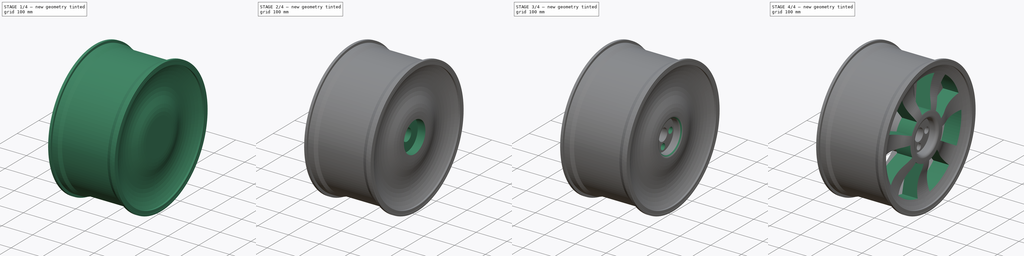
[diagram: build sequence overview — one tinted view per stage of 4, left to right]
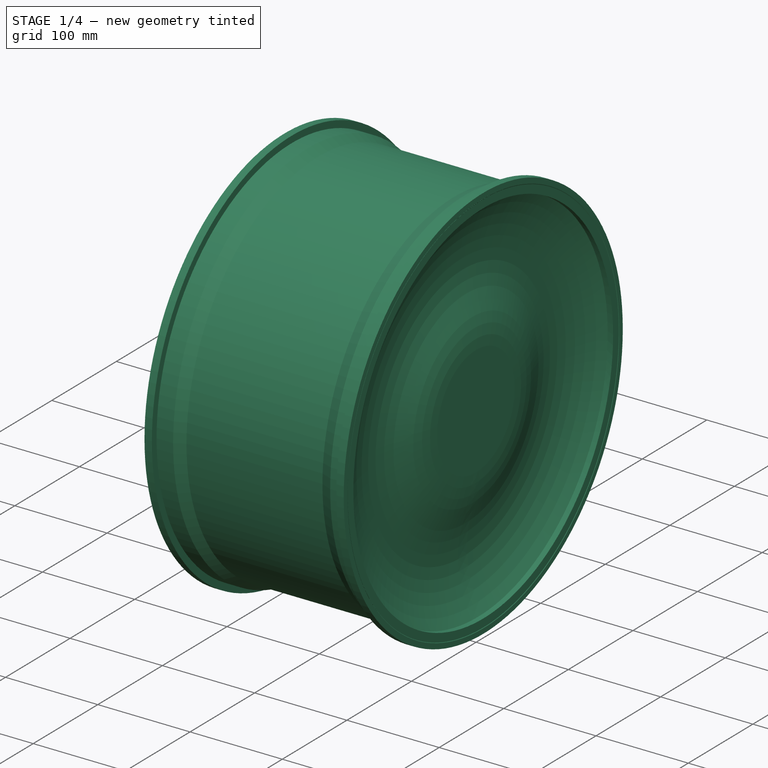
[diagram: stage 1 of 4 — iso view after this stage's code; geometry added in this stage tinted green]
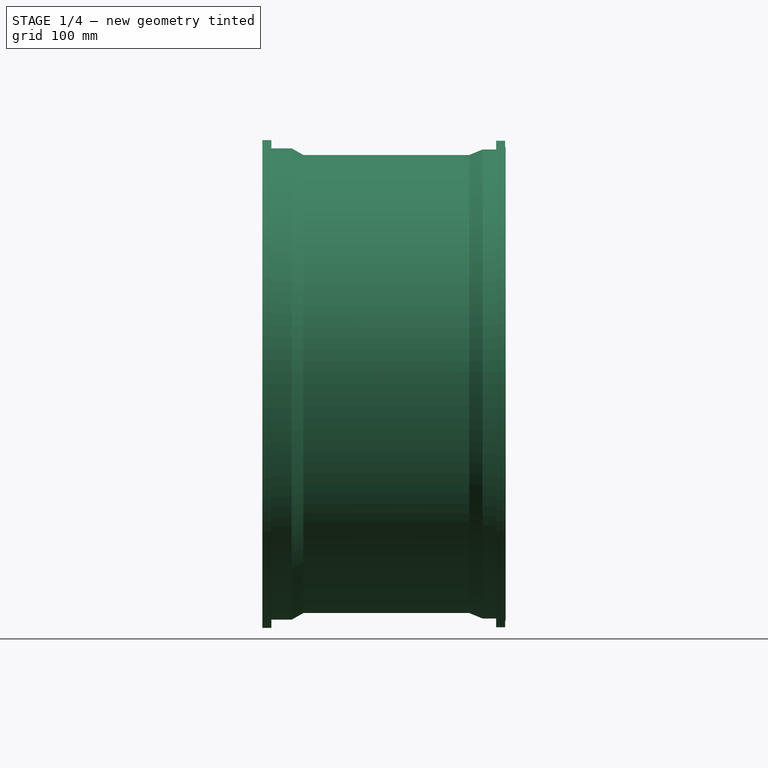
[diagram: stage 1 of 4 — front view after this stage's code; geometry added in this stage tinted green]
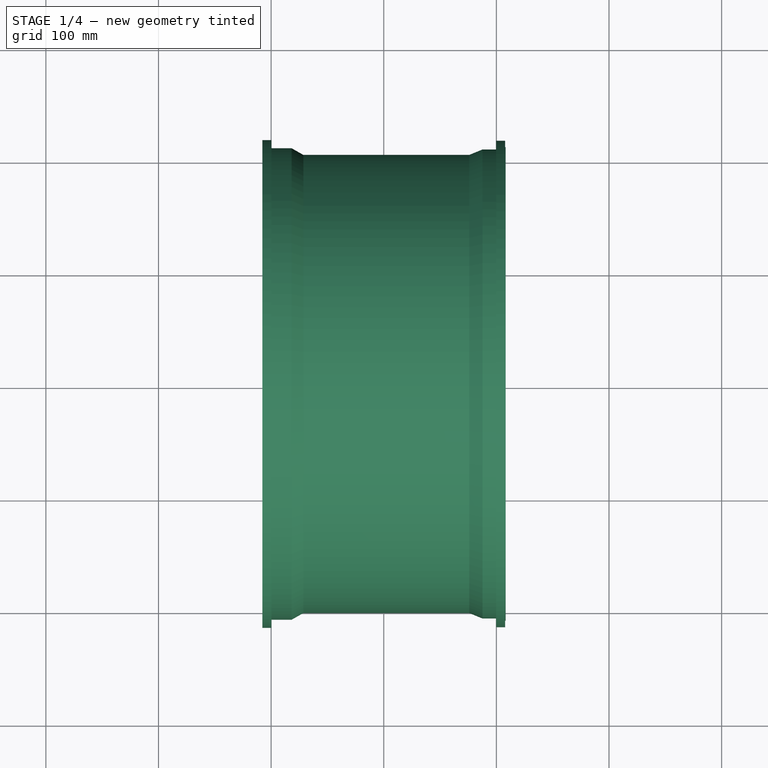
[diagram: stage 1 of 4 — top view after this stage's code; geometry added in this stage tinted green]
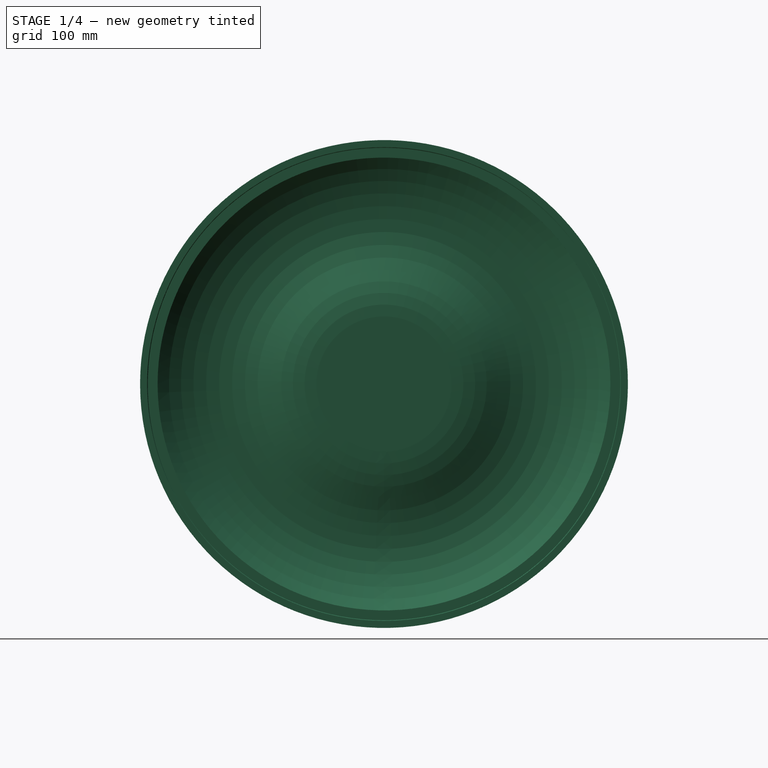
[diagram: stage 1 of 4 — right view after this stage's code; geometry added in this stage tinted green]
FCSTD DOCUMENT  (FreeCAD 0.18R4 (GitTag))
Label: Wheel
License: All rights reserved
LicenseURL: http://en.wikipedia.org/wiki/All_rights_reserved
objects: Sketcher::SketchObject×6, PartDesign::Pocket×4, PartDesign::Revolution×2, PartDesign::PolarPattern×2, PartDesign::Fillet×1, PartDesign::Body×1
note: 22 computed .brp shape members not serialized (recipe doc carries the construction recipe); baked Part::Feature solids carry a one-line shape summary decoded from their .brp

FEATURE [Sketcher::SketchObject] Sketch
  MapMode = 5
  Support = -> [XY_Plane]
  sketch-geometry (22):
    g0: LineSegment [constr] StartX=-108 StartY=216 StartZ=0 EndX=108 EndY=216 EndZ=0
    g1: LineSegment [constr] StartX=108 StartY=216 StartZ=0 EndX=108 EndY=-216 EndZ=0
    g2: LineSegment [constr] StartX=108 StartY=-216 StartZ=0 EndX=-108 EndY=-216 EndZ=0
    g3: LineSegment [constr] StartX=-108 StartY=-216 StartZ=0 EndX=-108 EndY=216 EndZ=0
    g4: LineSegment StartX=-39.4175 StartY=196 StartZ=0 EndX=39.4175 EndY=196 EndZ=0
    g5: LineSegment StartX=39.4175 StartY=196 StartZ=0 EndX=78.3587 EndY=196 EndZ=0
    g6: LineSegment StartX=78.3587 StartY=196 StartZ=0 EndX=90.812 EndY=201.018 EndZ=0
    g7: LineSegment StartX=90.812 StartY=201.018 StartZ=0 EndX=107.762 EndY=201.018 EndZ=0
    g8: LineSegment StartX=107.762 StartY=201.018 StartZ=0 EndX=107.762 EndY=216.018 EndZ=0
    g9: LineSegment StartX=107.762 StartY=216.018 StartZ=0 EndX=99.7623 EndY=216.018 EndZ=0
    g10: LineSegment StartX=99.7623 StartY=216.018 StartZ=0 EndX=99.7623 EndY=208.283 EndZ=0
    g11: LineSegment StartX=99.7623 StartY=208.283 StartZ=0 EndX=87.6987 EndY=208.283 EndZ=0
    g12: LineSegment StartX=87.6987 StartY=208.283 StartZ=0 EndX=75.931 EndY=203.44 EndZ=0
    g13: LineSegment StartX=75.931 StartY=203.44 StartZ=0 EndX=-71.4264 EndY=203.44 EndZ=0
    g14: LineSegment StartX=-71.4264 StartY=203.44 StartZ=0 EndX=-81.8041 EndY=209.32 EndZ=0
    g15: LineSegment StartX=-81.8041 StartY=209.32 StartZ=0 EndX=-99.7484 EndY=209.32 EndZ=0
    g16: LineSegment StartX=-99.7484 StartY=209.32 StartZ=0 EndX=-99.7484 EndY=216.585 EndZ=0
    g17: LineSegment StartX=-99.7484 StartY=216.585 StartZ=0 EndX=-107.748 EndY=216.585 EndZ=0
    g18: LineSegment StartX=-107.748 StartY=216.585 StartZ=0 EndX=-107.748 EndY=201 EndZ=0
    g19: LineSegment StartX=-107.748 StartY=201 StartZ=0 EndX=-85.2633 EndY=201 EndZ=0
    g20: LineSegment StartX=-85.2633 StartY=201 StartZ=0 EndX=-76.6152 EndY=196 EndZ=0
    g21: LineSegment StartX=-76.6152 StartY=196 StartZ=0 EndX=-39.4175 EndY=196 EndZ=0
  constraints (47):
    c: Coincident(g0,g1)
    c: Coincident(g1,g2)
    c: Coincident(g2,g3)
    c: Coincident(g3,g0)
    c: Symmetric(g0,g0,g-2)
    c: Symmetric(g0,g1,g-1)
    c: DistanceX(g0,g0) = 216
    c: DistanceY(g1,g1) = 432
    c: Vertical(g3)
    c: Horizontal(g2)
    c: Symmetric(g4,g4,g-2)
    c: Distance(g4,g0) = 20
    c: Coincident(g5,g6)
    c: Coincident(g6,g7)
    c: Coincident(g7,g8)
    c: Coincident(g8,g9)
    c: Coincident(g9,g10)
    c: Coincident(g10,g11)
    c: Coincident(g11,g12)
    c: Coincident(g12,g13)
    c: Coincident(g13,g14)
    c: Coincident(g14,g15)
    c: Coincident(g15,g16)
    c: Coincident(g16,g17)
    c: Coincident(g17,g18)
    c: Coincident(g18,g19)
    c: Coincident(g19,g20)
    c: Coincident(g20,g21)
    c: Horizontal(g11)
    c: Horizontal(g9)
    c: Horizontal(g7)
    c: Horizontal(g5)
    c: Horizontal(g21)
    c: Horizontal(g19)
    c: Horizontal(g15)
    c: Horizontal(g17)
    c: Horizontal(g13)
    c: Vertical(g10)
    c: Vertical(g8)
    c: Vertical(g18)
    c: Vertical(g16)
    c: DistanceX(g17,g17) = 8
    c: DistanceX(g9,g9) = 8
    c: DistanceY(g18,g0) = 15
    c: DistanceY(g8,g8) = 15
    c: Coincident(g4,g21)
    c: Coincident(g4,g5)
FEATURE [PartDesign::Revolution] Revolution
  Angle = 360
  Axis = (1,0,0)
  Base = (0,0,0)
  Midplane = true
  Profile = -> Sketch
  ReferenceAxis = -> Sketch [H_Axis]
FEATURE [Sketcher::SketchObject] CopySketch001
  Placement = pos=(0,0,0) rot=(1,0,0;1.5708rad)
  sketch-geometry (9):
    g0: LineSegment StartX=0 StartY=0 StartZ=0 EndX=99.9165 EndY=0 EndZ=0
    g1: LineSegment StartX=99.9165 StartY=0 StartZ=0 EndX=99.9165 EndY=60 EndZ=0
    g2: ArcOfCircle CenterX=-18.7762 CenterY=60 CenterZ=0 NormalX=0 NormalY=0 NormalZ=1 AngleXU=0 Radius=118.693 StartAngle=0 EndAngle=0.354804
    g3: ArcOfCircle CenterX=200.868 CenterY=141.374 CenterZ=0 NormalX=0 NormalY=0 NormalZ=1 AngleXU=0 Radius=115.541 StartAngle=2.50234 EndAngle=3.4964
    g4: LineSegment StartX=108.142 StartY=210.306 StartZ=0 EndX=76.1023 EndY=192.146 EndZ=0
    g5: LineSegment StartX=76.1023 StartY=192.146 StartZ=0 EndX=39.1771 EndY=192.146 EndZ=0
    g6: ArcOfCircle CenterX=699.064 CenterY=192.146 CenterZ=0 NormalX=0 NormalY=0 NormalZ=1 AngleXU=0 Radius=659.887 StartAngle=3.14159 EndAngle=3.34321
    g7: LineSegment StartX=52.544 StartY=60 StartZ=0 EndX=0 EndY=60 EndZ=0
    g8: LineSegment StartX=0 StartY=60 StartZ=0 EndX=0 EndY=0 EndZ=0
  constraints (17):
    c: Coincident(g0,g1)
    c: Tangent(g1,g2) = -1.5708
    c: Tangent(g2,g3) = 1.5708
    c: Coincident(g3,g4)
    c: Coincident(g4,g5)
    c: Perpendicular(g5,g6) = 1.5708
    c: Coincident(g6,g7)
    c: Coincident(g7,g8)
    c: Coincident(g8,g0)
    c: DistanceY(g1,g7) = 0
    c: Coincident(g0,g-1)
    c: Horizontal(g0)
    c: Horizontal(g5)
    c: Vertical(g8)
    c: Vertical(g1)
    c: DistanceY(g6,g7) = 0
    c: DistanceY(g0,g1) = 60
FEATURE [PartDesign::Revolution] Revolution001
  Angle = 360
  Axis = (1,0,0)
  Base = (0,0,0)
  BaseFeature = -> Revolution
  Midplane = true
  Profile = -> CopySketch001
  ReferenceAxis = -> CopySketch001 [H_Axis]
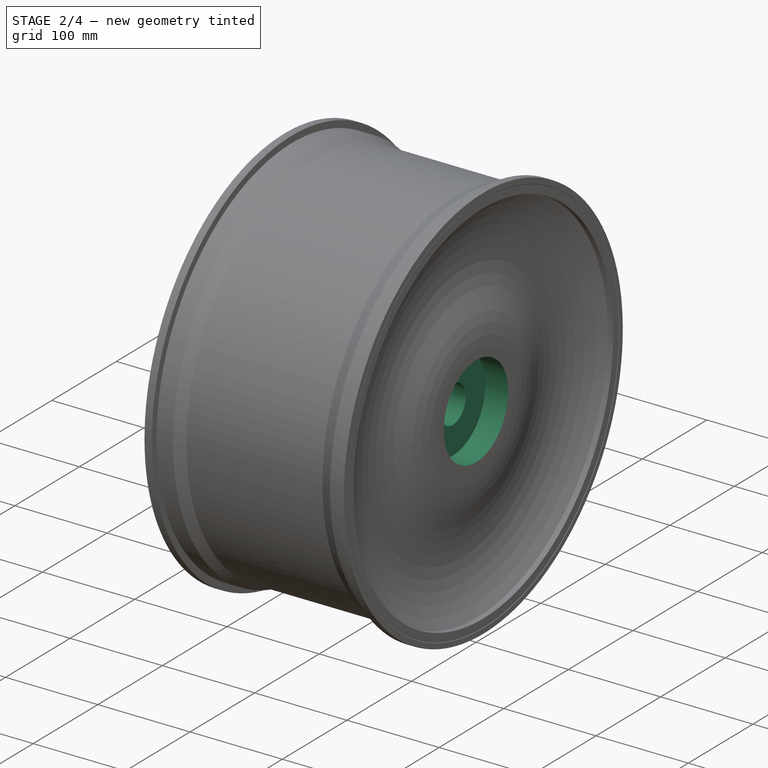
[diagram: stage 2 of 4 — iso view after this stage's code; geometry added in this stage tinted green]
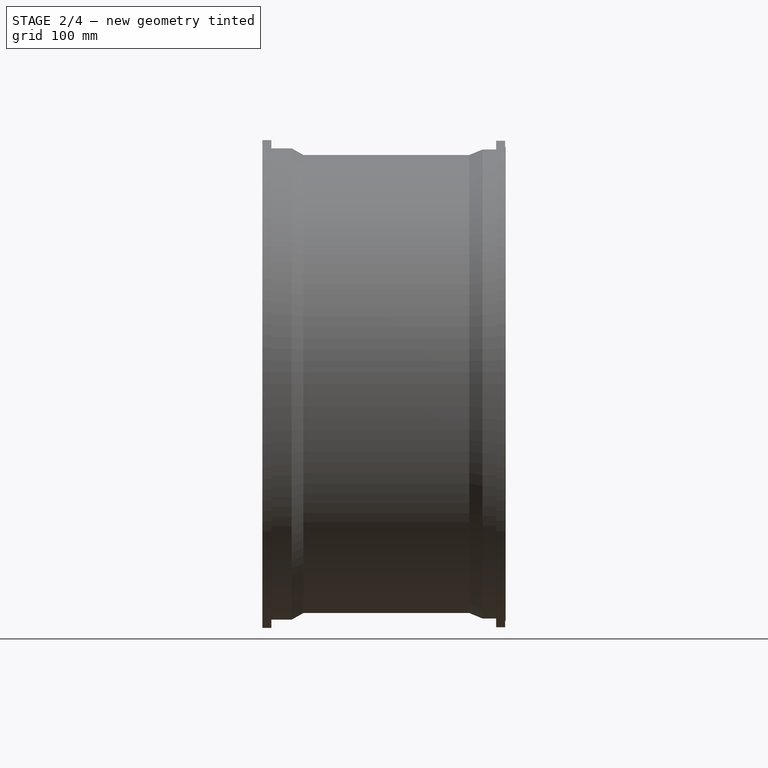
[diagram: stage 2 of 4 — front view after this stage's code; geometry added in this stage tinted green]
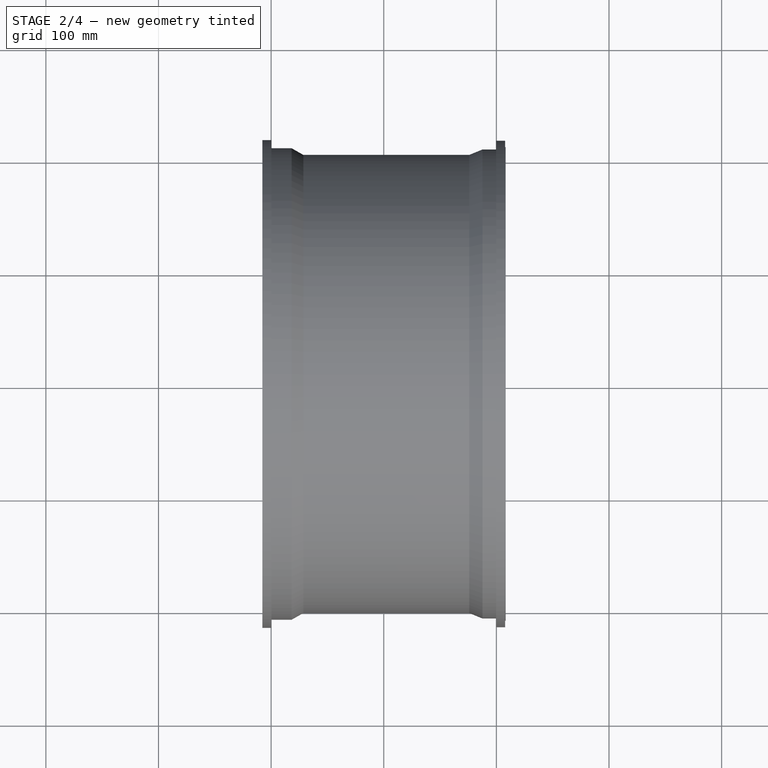
[diagram: stage 2 of 4 — top view after this stage's code; geometry added in this stage tinted green]
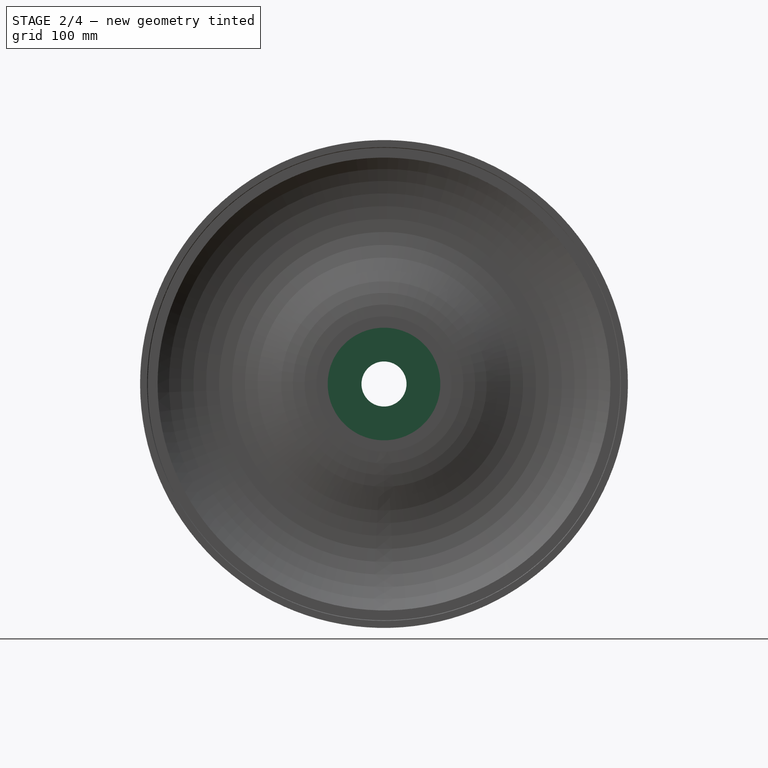
[diagram: stage 2 of 4 — right view after this stage's code; geometry added in this stage tinted green]
FEATURE [Sketcher::SketchObject] Sketch001
  MapMode = 5
  Placement = pos=(99.9165,0,0) rot=(0.57735,0.57735,0.57735;2.0944rad)
  Support = -> [Revolution001]
  sketch-geometry (1):
    g0: Circle CenterX=0 CenterY=0 CenterZ=0 NormalX=0 NormalY=0 NormalZ=1 AngleXU=0 Radius=50
  constraints (1):
    c: Radius(g0) = 50
FEATURE [PartDesign::Pocket] Pocket
  BaseFeature = -> Revolution001
  Length = 25
  Length2 = 100
  Profile = -> Sketch001
  Type = 0
FEATURE [Sketcher::SketchObject] Sketch002
  MapMode = 5
  Placement = pos=(74.9165,0,0) rot=(0.57735,0.57735,0.57735;2.0944rad)
  Support = -> [Pocket]
  sketch-geometry (1):
    g0: Circle CenterX=0 CenterY=0 CenterZ=0 NormalX=0 NormalY=0 NormalZ=1 AngleXU=0 Radius=20
  constraints (1):
    c: Radius(g0) = 20
FEATURE [PartDesign::Pocket] Pocket001
  BaseFeature = -> Pocket
  Length = 5
  Length2 = 100
  Profile = -> Sketch002
  Type = 1
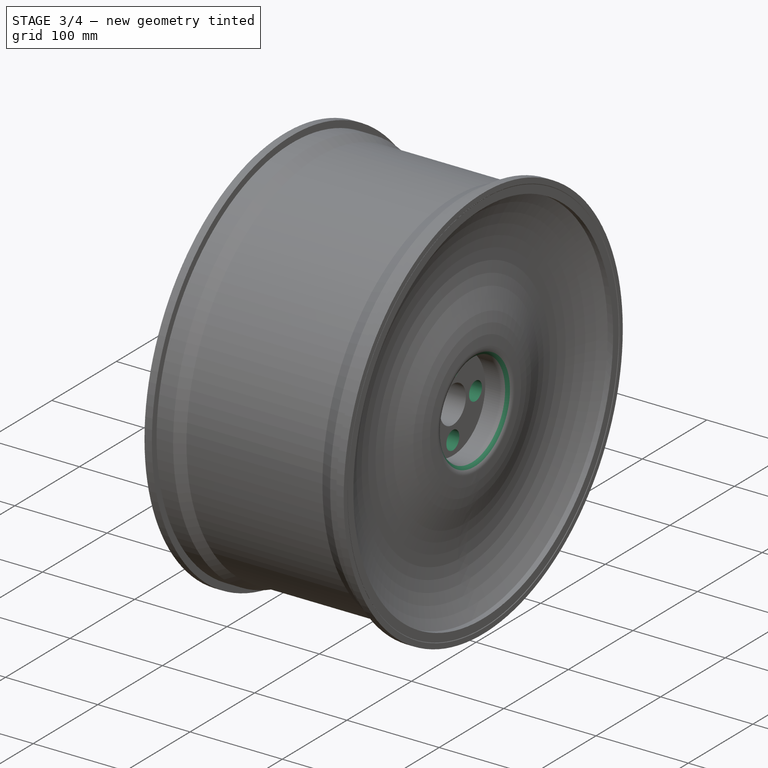
[diagram: stage 3 of 4 — iso view after this stage's code; geometry added in this stage tinted green]
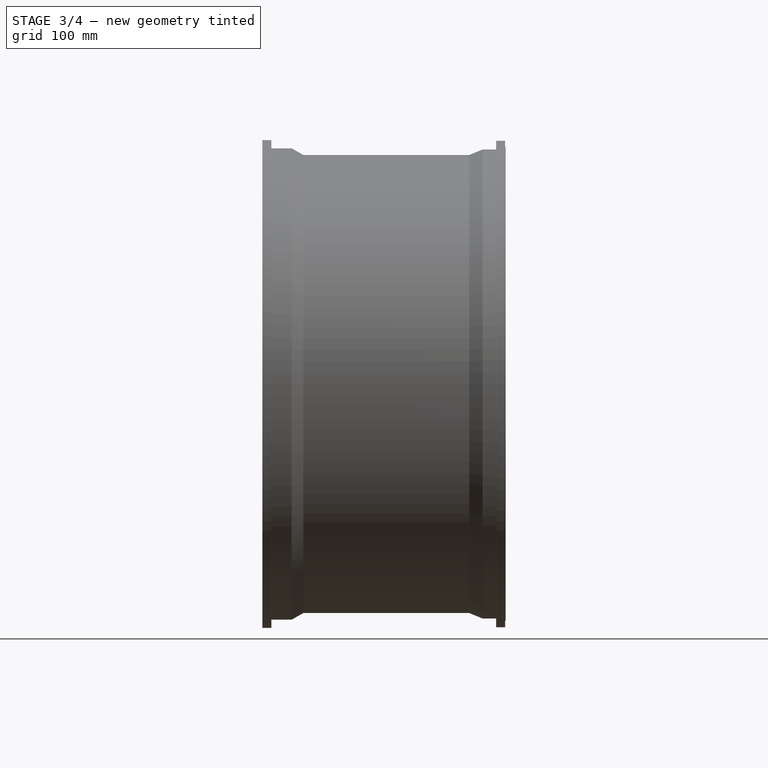
[diagram: stage 3 of 4 — front view after this stage's code; geometry added in this stage tinted green]
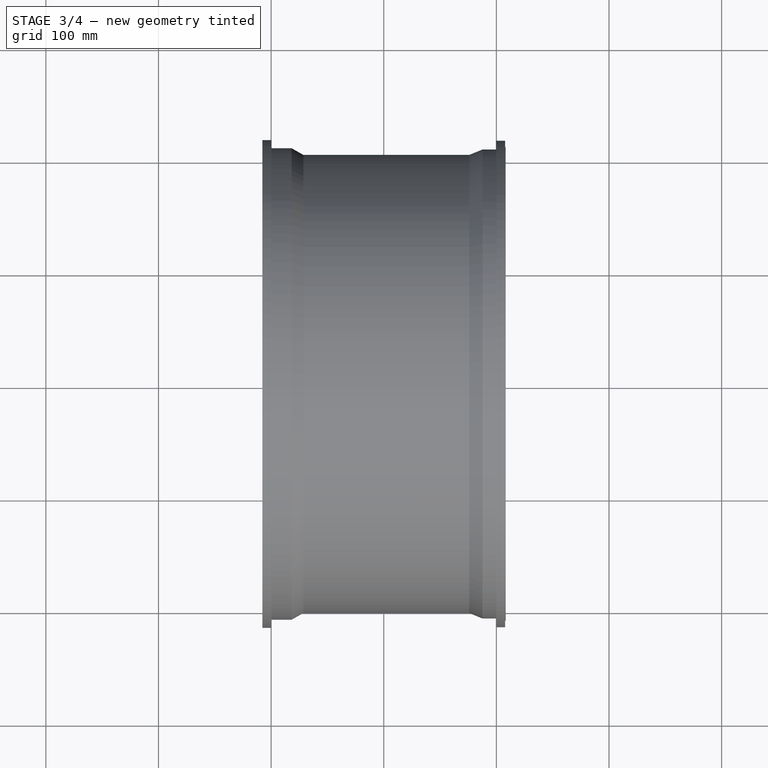
[diagram: stage 3 of 4 — top view after this stage's code; geometry added in this stage tinted green]
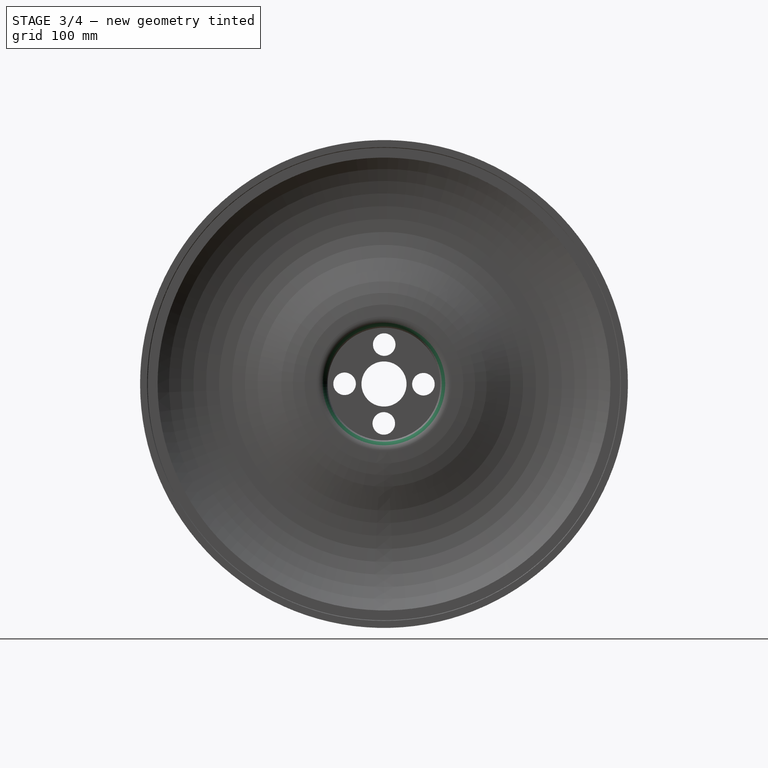
[diagram: stage 3 of 4 — right view after this stage's code; geometry added in this stage tinted green]
FEATURE [Sketcher::SketchObject] Sketch003
  MapMode = 5
  Placement = pos=(74.9165,0,0) rot=(0.57735,0.57735,0.57735;2.0944rad)
  Support = -> [Pocket001]
  sketch-geometry (1):
    g0: Circle CenterX=0.186618 CenterY=34.9995 CenterZ=0 NormalX=0 NormalY=0 NormalZ=1 AngleXU=0 Radius=10
  constraints (2):
    c: Radius(g0) = 10
    c: Distance(g-1,g0) = 35
FEATURE [PartDesign::Pocket] Pocket002
  BaseFeature = -> Pocket001
  Length = 5
  Length2 = 100
  Profile = -> Sketch003
  Type = 1
FEATURE [PartDesign::PolarPattern] PolarPattern
  Angle = 360
  Axis = -> Sketch003 [N_Axis]
  BaseFeature = -> Pocket002
  Occurrences = 4
  Originals = -> [Pocket002]
FEATURE [PartDesign::Fillet] Fillet
  Base = -> PolarPattern [Edge56]
  BaseFeature = -> PolarPattern
  Radius = 9
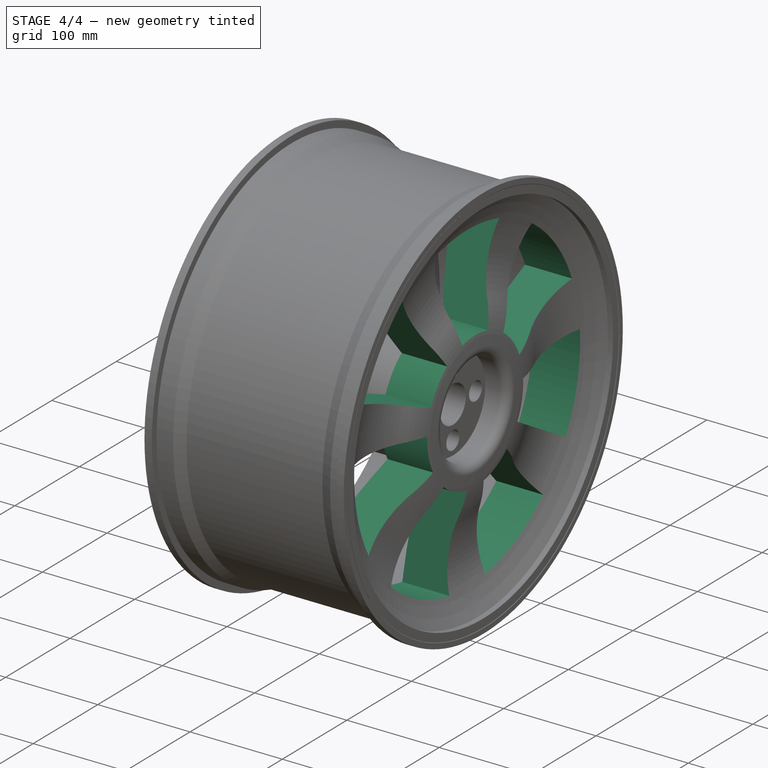
[diagram: stage 4 of 4 — iso view after this stage's code; geometry added in this stage tinted green]
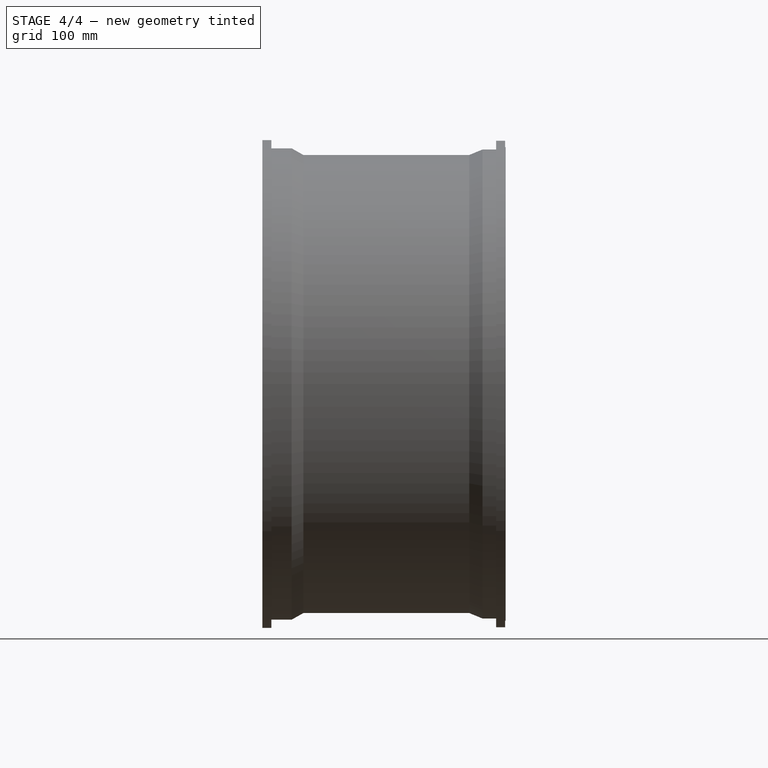
[diagram: stage 4 of 4 — front view after this stage's code; geometry added in this stage tinted green]
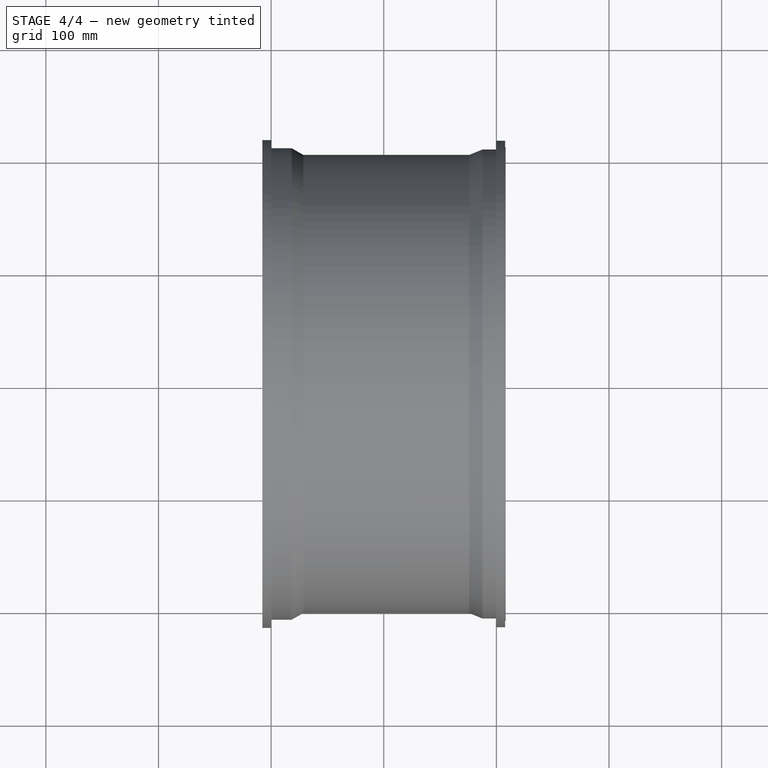
[diagram: stage 4 of 4 — top view after this stage's code; geometry added in this stage tinted green]
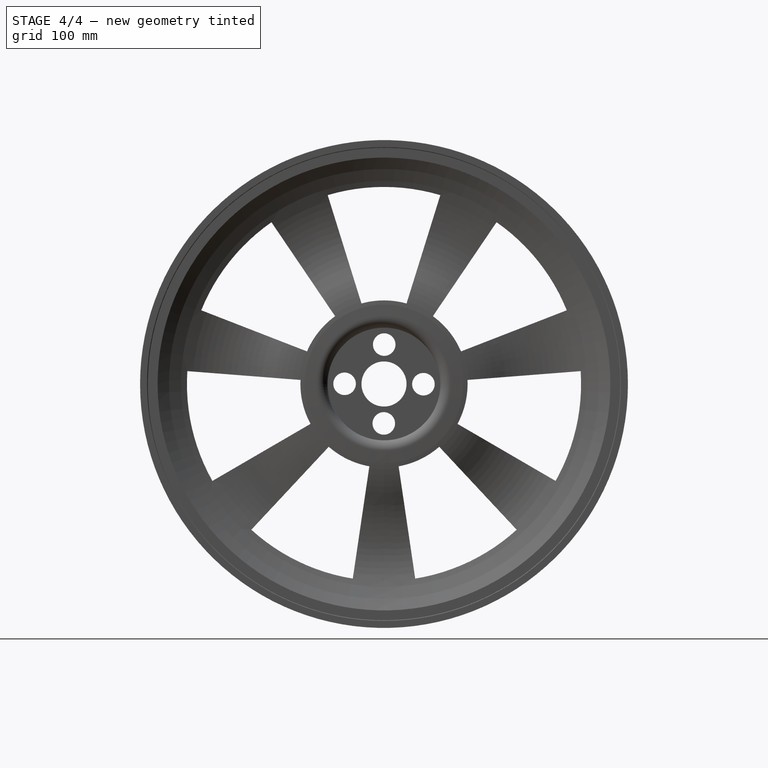
[diagram: stage 4 of 4 — right view after this stage's code; geometry added in this stage tinted green]
FEATURE [Sketcher::SketchObject] Sketch004
  MapMode = 5
  Placement = pos=(0,0,0) rot=(0.57735,0.57735,0.57735;2.0944rad)
  Support = -> [YZ_Plane]
  sketch-geometry (6):
    g0: Circle [constr] CenterX=0 CenterY=0 CenterZ=0 NormalX=0 NormalY=0 NormalZ=1 AngleXU=0 Radius=75
    g1: Circle [constr] CenterX=0 CenterY=0 CenterZ=0 NormalX=0 NormalY=0 NormalZ=1 AngleXU=0 Radius=175
    g2: ArcOfCircle CenterX=5.2e-15 CenterY=-0.334499 CenterZ=0 NormalX=0 NormalY=0 NormalZ=1 AngleXU=0 Radius=74.552 StartAngle=1.2992 EndAngle=1.84239
    g3: ArcOfCircle CenterX=1.03e-14 CenterY=-0.331752 CenterZ=0 NormalX=0 NormalY=0 NormalZ=1 AngleXU=0 Radius=175.305 StartAngle=1.28156 EndAngle=1.86003
    g4: LineSegment StartX=20 StartY=71.4847 StartZ=0 EndX=50 EndY=167.692 EndZ=0
    g5: LineSegment StartX=-20 StartY=71.4847 StartZ=0 EndX=-50 EndY=167.692 EndZ=0
  constraints (10):
    c: Radius(g1) = 175
    c: Radius(g0) = 75
    c: Symmetric(g3,g3,g-2)
    c: Symmetric(g2,g2,g-2)
    c: Distance(g2,g2) = 40
    c: Distance(g3,g3) = 100
    c: Coincident(g4,g3)
    c: Coincident(g4,g2)
    c: Coincident(g2,g5)
    c: Coincident(g3,g5)
FEATURE [PartDesign::Pocket] Pocket003
  BaseFeature = -> Fillet
  Length = 5
  Length2 = 100
  Midplane = true
  Profile = -> Sketch004
  Type = 1
FEATURE [PartDesign::PolarPattern] PolarPattern001
  Angle = 360
  Axis = -> Sketch004 [N_Axis]
  BaseFeature = -> Pocket003
  Occurrences = 7
  Originals = -> [Pocket003]
FEATURE [PartDesign::Body] Body
  Group = -> [Sketch,Revolution,Revolution001,Sketch001,Pocket,Sketch002,Pocket001,Sketch003,Pocket002,PolarPattern,Fillet,Sketch004,Pocket003,PolarPattern001]
  Origin = -> Origin
  Tip = -> PolarPattern001
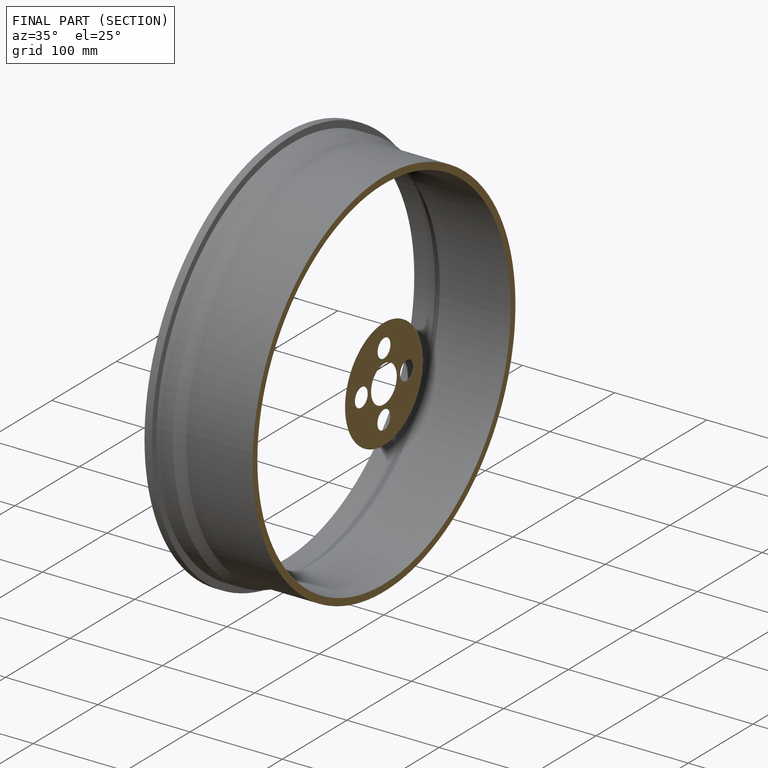
[diagram: finished part — half-section view (interior)]
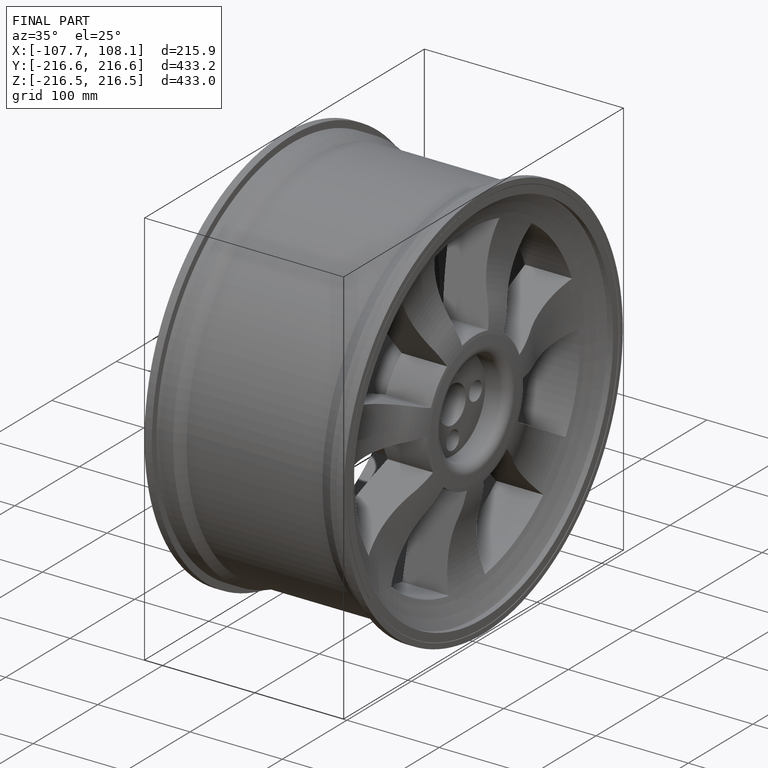
[diagram: finished part — iso view with bounding-box wireframe]
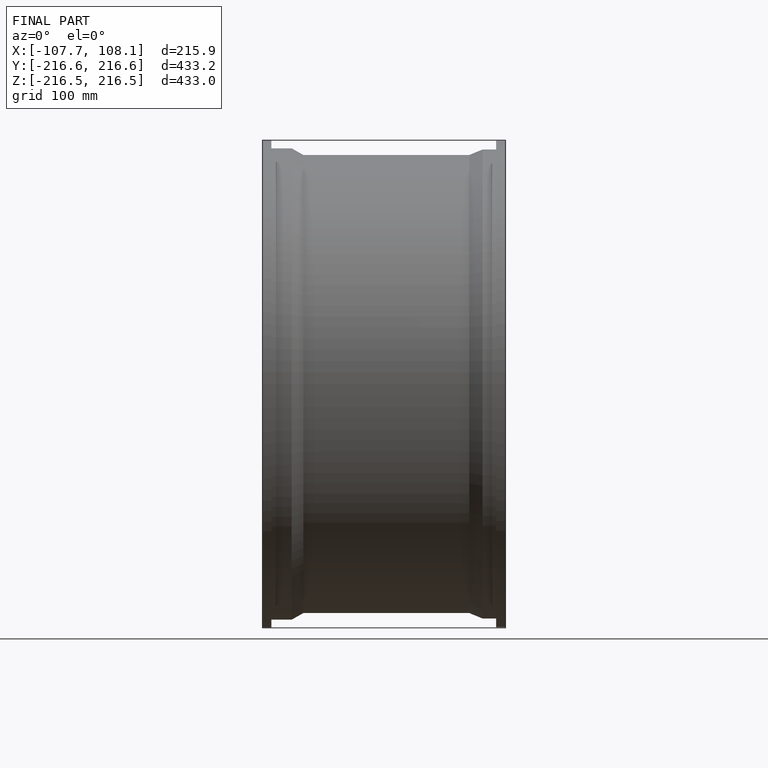
[diagram: finished part — front view with bounding-box wireframe]
